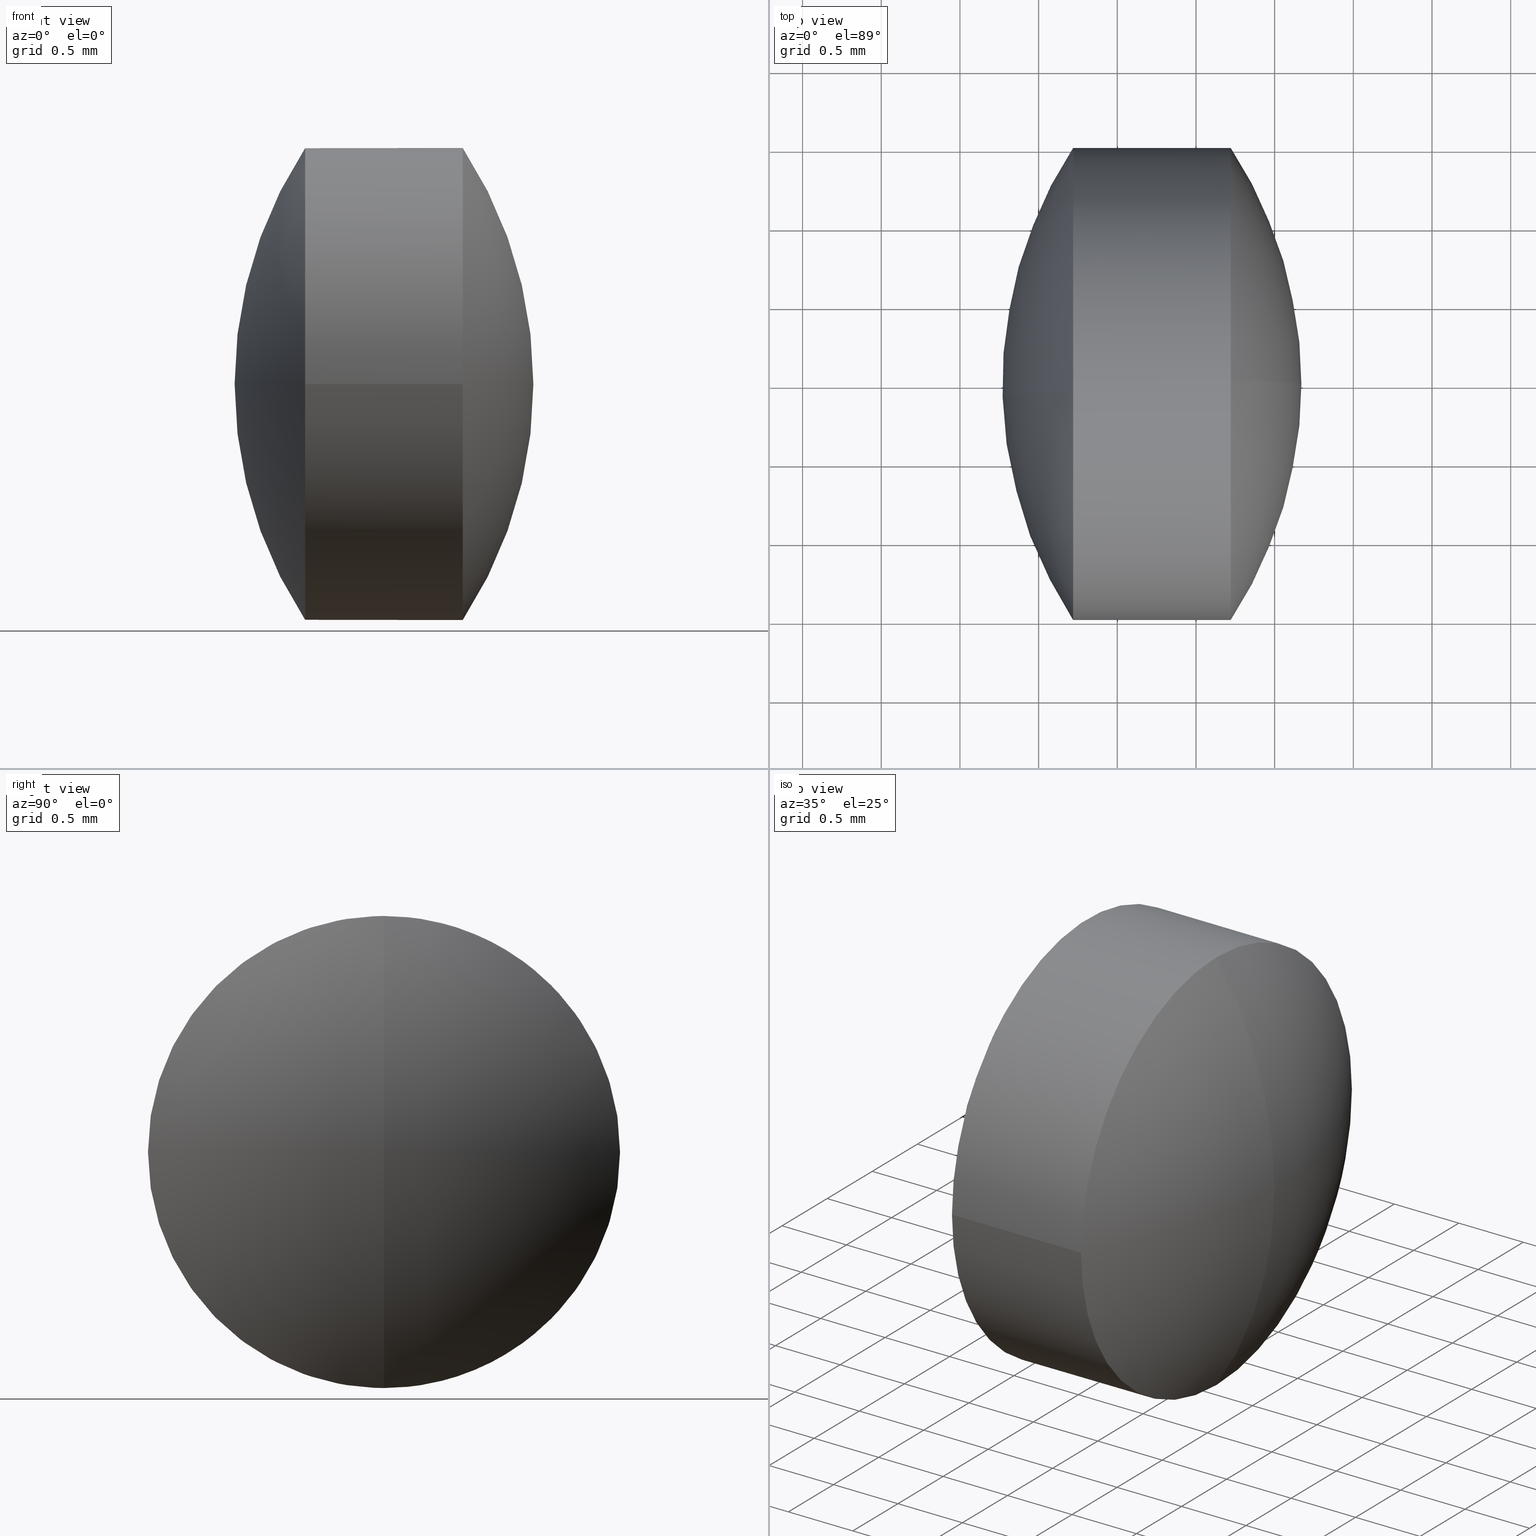
[diagram: canonical four-view strip — front | top / right | iso, engineering-drawing reading convention]
A machine part, canonical four-view strip (front | top / right | iso — engineering-drawing reading convention). The complete STEP part file that produces these views, byte-faithful:
ISO-10303-21;
HEADER;
FILE_DESCRIPTION (( 'STEP AP203' ),
    '1' );
FILE_NAME ('110002.STEP',
    '2022-03-17T09:48:08',
    ( '' ),
    ( '' ),
    'SwSTEP 2.0',
    'SolidWorks 2020',
    '' );
FILE_SCHEMA (( 'CONFIG_CONTROL_DESIGN' ));
ENDSEC;

DATA;
#1 = CARTESIAN_POINT ( 'NONE',  ( -1.279013371367559992, -2.074997055721540335E-16, 0.000000000000000000 ) ) ;
#2 = DIRECTION ( 'NONE',  ( 1.000000000000000000, 4.621236666965490468E-16, 0.000000000000000000 ) ) ;
#3 = DIRECTION ( 'NONE',  ( 0.000000000000000000, 0.000000000000000000, -1.000000000000000000 ) ) ;
#4 = UNCERTAINTY_MEASURE_WITH_UNIT (LENGTH_MEASURE( 1.000000000000000082E-05 ), #51, 'distance_accuracy_value', 'NONE');
#5 = DIRECTION ( 'NONE',  ( -4.336808689942017736E-16, 1.000000000000000000, 0.000000000000000000 ) ) ;
#6 = AXIS2_PLACEMENT_3D ( 'NONE', #23, #235, #101 ) ;
#7 = DIRECTION ( 'NONE',  ( 0.000000000000000000, 0.000000000000000000, -1.000000000000000000 ) ) ;
#8 = DIRECTION ( 'NONE',  ( 0.000000000000000000, 0.000000000000000000, -1.000000000000000000 ) ) ;
#9 = CIRCLE ( 'NONE', #192, 2.729999999999999982 ) ;
#10 = MANIFOLD_SOLID_BREP ( '���2.stp', #155 ) ;
#11 = PERSON_AND_ORGANIZATION_ROLE ( 'creator' ) ;
#12 = AXIS2_PLACEMENT_3D ( 'NONE', #103, #200, #25 ) ;
#13 = APPROVAL_DATE_TIME ( #106, #230 ) ;
#14 = APPLICATION_PROTOCOL_DEFINITION ( 'international standard', 'config_control_design', 1994, #81 ) ;
#15 = ORIENTED_EDGE ( 'NONE', *, *, #117, .T. ) ;
#16 = APPROVAL_DATE_TIME ( #242, #108 ) ;
#17 = EDGE_LOOP ( 'NONE', ( #193, #212, #113 ) ) ;
#18 = APPROVAL_DATE_TIME ( #188, #100 ) ;
#19 = PERSON ( 'δָ��', 'δָ��', 'δָ��', ('δָ��'), ('δָ��'), ('δָ��') ) ;
#20 = LOCAL_TIME ( 17, 48, 8.000000000000000000, #37 ) ;
#21 = AXIS2_PLACEMENT_3D ( 'NONE', #49, #160, #174 ) ;
#22 = CARTESIAN_POINT ( 'NONE',  ( -1.279013371367559770, 0.000000000000000000, -1.500000000000002442 ) ) ;
#23 = CARTESIAN_POINT ( 'NONE',  ( -1.279013371367559992, -2.074997055721540335E-16, 0.000000000000000000 ) ) ;
#24 = LOCAL_TIME ( 17, 48, 8.000000000000000000, #229 ) ;
#25 = DIRECTION ( 'NONE',  ( -0.9995481948924014315, -0.03005671451342888795, 0.000000000000000000 ) ) ;
#26 = CC_DESIGN_DATE_AND_TIME_ASSIGNMENT ( #40, #227, ( #82 ) ) ;
#27 = CARTESIAN_POINT ( 'NONE',  ( -1.279013371367559992, -2.074997055721540335E-16, 0.000000000000000000 ) ) ;
#28 = CARTESIAN_POINT ( 'NONE',  ( -1.780000000000000471, 1.499999999999999556, 0.000000000000000000 ) ) ;
#29 = DIRECTION ( 'NONE',  ( 0.03005671451342888795, -0.9995481948924014315, 3.582458973934590859E-33 ) ) ;
#30 = CC_DESIGN_PERSON_AND_ORGANIZATION_ASSIGNMENT ( #149, #89, ( #82 ) ) ;
#31 = PERSON_AND_ORGANIZATION ( #19, #116 ) ;
#32 = COORDINATED_UNIVERSAL_TIME_OFFSET ( 8, 0, .AHEAD. ) ;
#33 = VECTOR ( 'NONE', #46, 1000.000000000000000 ) ;
#34 = CARTESIAN_POINT ( 'NONE',  ( -1.279013371367559326, -1.500000000000000222, 1.836970198721029934E-16 ) ) ;
#35 = VERTEX_POINT ( 'NONE', #197 ) ;
#36 = ORIENTED_EDGE ( 'NONE', *, *, #152, .F. ) ;
#37 = COORDINATED_UNIVERSAL_TIME_OFFSET ( 8, 0, .AHEAD. ) ;
#38 = CALENDAR_DATE ( 2022, 17, 3 ) ;
#39 = CC_DESIGN_APPROVAL ( #230, ( #94 ) ) ;
#40 = DATE_AND_TIME ( #38, #220 ) ;
#41 = ORIENTED_EDGE ( 'NONE', *, *, #171, .T. ) ;
#42 = VERTEX_POINT ( 'NONE', #22 ) ;
#43 = VERTEX_POINT ( 'NONE', #99 ) ;
#44 = CYLINDRICAL_SURFACE ( 'NONE', #194, 1.500000000000000000 ) ;
#45 = AXIS2_PLACEMENT_3D ( 'NONE', #150, #56, #153 ) ;
#46 = DIRECTION ( 'NONE',  ( 1.000000000000000000, 4.625929269271479997E-16, 0.000000000000000000 ) ) ;
#47 = CIRCLE ( 'NONE', #119, 1.500000000000000000 ) ;
#48 = DIRECTION ( 'NONE',  ( 1.000000000000000000, 0.000000000000000000, 0.000000000000000000 ) ) ;
#49 = CARTESIAN_POINT ( 'NONE',  ( 0.000000000000000000, 0.000000000000000000, 0.000000000000000000 ) ) ;
#50 = FACE_OUTER_BOUND ( 'NONE', #118, .T. ) ;
#51 =( LENGTH_UNIT ( ) NAMED_UNIT ( * ) SI_UNIT ( .MILLI., .METRE. ) );
#52 = CIRCLE ( 'NONE', #141, 1.500000000000000000 ) ;
#53 =( NAMED_UNIT ( * ) PLANE_ANGLE_UNIT ( ) SI_UNIT ( $, .RADIAN. ) );
#54 = APPROVAL_ROLE ( '' ) ;
#55 = ORIENTED_EDGE ( 'NONE', *, *, #123, .F. ) ;
#56 = DIRECTION ( 'NONE',  ( 0.000000000000000000, 0.000000000000000000, 1.000000000000000000 ) ) ;
#57 = ADVANCED_FACE ( 'NONE', ( #173 ), #217, .T. ) ;
#58 = COORDINATED_UNIVERSAL_TIME_OFFSET ( 8, 0, .AHEAD. ) ;
#59 = VERTEX_POINT ( 'NONE', #158 ) ;
#60 = ORIENTED_EDGE ( 'NONE', *, *, #222, .F. ) ;
#61 = ORIENTED_EDGE ( 'NONE', *, *, #129, .F. ) ;
#62 = DIRECTION ( 'NONE',  ( 1.000000000000000000, 0.000000000000000000, 0.000000000000000000 ) ) ;
#63 = ADVANCED_FACE ( 'NONE', ( #50 ), #44, .T. ) ;
#64 = DIRECTION ( 'NONE',  ( 0.000000000000000000, 0.000000000000000000, -1.000000000000000000 ) ) ;
#65 = CC_DESIGN_APPROVAL ( #108, ( #147 ) ) ;
#66 = DIRECTION ( 'NONE',  ( 0.000000000000000000, 1.000000000000000000, 0.000000000000000000 ) ) ;
#67 = DIRECTION ( 'NONE',  ( 1.000000000000000000, 4.621236666965490468E-16, 0.000000000000000000 ) ) ;
#68 = CARTESIAN_POINT ( 'NONE',  ( -2.280986628632439839, -6.705352611512889582E-16, 0.000000000000000000 ) ) ;
#69 =( NAMED_UNIT ( * ) SI_UNIT ( $, .STERADIAN. ) SOLID_ANGLE_UNIT ( ) );
#70 = PERSON_AND_ORGANIZATION ( #19, #116 ) ;
#71 = CC_DESIGN_PERSON_AND_ORGANIZATION_ASSIGNMENT ( #31, #72, ( #130 ) ) ;
#72 = PERSON_AND_ORGANIZATION_ROLE ( 'design_owner' ) ;
#73 = EDGE_CURVE ( 'NONE', #42, #186, #47, .T. ) ;
#74 =( GEOMETRIC_REPRESENTATION_CONTEXT ( 3 ) GLOBAL_UNCERTAINTY_ASSIGNED_CONTEXT ( ( #4 ) ) GLOBAL_UNIT_ASSIGNED_CONTEXT ( ( #51, #53, #69 ) ) REPRESENTATION_CONTEXT ( 'NONE', 'WORKASPACE' ) );
#75 = CIRCLE ( 'NONE', #245, 1.500000000000000000 ) ;
#76 = VERTEX_POINT ( 'NONE', #234 ) ;
#77 = ORIENTED_EDGE ( 'NONE', *, *, #73, .T. ) ;
#78 = ADVANCED_FACE ( 'NONE', ( #162 ), #232, .T. ) ;
#79 = ORIENTED_EDGE ( 'NONE', *, *, #195, .F. ) ;
#80 = CARTESIAN_POINT ( 'NONE',  ( -3.559999999999999609, 0.000000000000000000, 0.000000000000000000 ) ) ;
#81 = APPLICATION_CONTEXT ( 'configuration controlled 3d designs of mechanical parts and assemblies' ) ;
#82 = SECURITY_CLASSIFICATION ( '', '', #169 ) ;
#83 = FACE_OUTER_BOUND ( 'NONE', #196, .T. ) ;
#84 = DIRECTION ( 'NONE',  ( 0.000000000000000000, 1.000000000000000000, 0.000000000000000000 ) ) ;
#85 = CIRCLE ( 'NONE', #107, 1.500000000000000000 ) ;
#86 = CARTESIAN_POINT ( 'NONE',  ( -1.779999999999999805, -4.390174833617219643E-16, 0.000000000000000000 ) ) ;
#87 = CIRCLE ( 'NONE', #6, 1.500000000000000000 ) ;
#88 = DIRECTION ( 'NONE',  ( 0.000000000000000000, -1.000000000000000000, 0.000000000000000000 ) ) ;
#89 = PERSON_AND_ORGANIZATION_ROLE ( 'classification_officer' ) ;
#90 = PERSON_AND_ORGANIZATION_ROLE ( 'design_supplier' ) ;
#91 = APPROVAL_STATUS ( 'not_yet_approved' ) ;
#92 = ORIENTED_EDGE ( 'NONE', *, *, #184, .F. ) ;
#93 = CALENDAR_DATE ( 2022, 17, 3 ) ;
#94 = PRODUCT_DEFINITION_FORMATION_WITH_SPECIFIED_SOURCE ( '�κ�', '', #130, .NOT_KNOWN. ) ;
#95 = VECTOR ( 'NONE', #218, 1000.000000000000000 ) ;
#96 = CC_DESIGN_DATE_AND_TIME_ASSIGNMENT ( #207, #219, ( #147 ) ) ;
#97 = ORIENTED_EDGE ( 'NONE', *, *, #206, .F. ) ;
#98 = EDGE_LOOP ( 'NONE', ( #55, #223, #79 ) ) ;
#99 = CARTESIAN_POINT ( 'NONE',  ( -2.280986628632440727, 1.499999999999999334, 0.000000000000000000 ) ) ;
#100 = APPROVAL ( #115, 'δָ��' ) ;
#101 = DIRECTION ( 'NONE',  ( 0.000000000000000000, 0.000000000000000000, -1.000000000000000000 ) ) ;
#102 = CARTESIAN_POINT ( 'NONE',  ( -2.280986628632439839, -6.705352611512889582E-16, 0.000000000000000000 ) ) ;
#103 = CARTESIAN_POINT ( 'NONE',  ( 0.000000000000000000, 0.000000000000000000, 0.000000000000000000 ) ) ;
#104 = SPHERICAL_SURFACE ( 'NONE', #131, 2.729999999999999982 ) ;
#105 = DIRECTION ( 'NONE',  ( 0.000000000000000000, 0.000000000000000000, -1.000000000000000000 ) ) ;
#106 = DATE_AND_TIME ( #93, #20 ) ;
#107 = AXIS2_PLACEMENT_3D ( 'NONE', #1, #112, #8 ) ;
#108 = APPROVAL ( #91, 'δָ��' ) ;
#109 = CALENDAR_DATE ( 2022, 17, 3 ) ;
#110 = CIRCLE ( 'NONE', #144, 1.500000000000000000 ) ;
#111 = PERSON_AND_ORGANIZATION ( #19, #116 ) ;
#112 = DIRECTION ( 'NONE',  ( 1.000000000000000000, 4.621236666965490468E-16, 0.000000000000000000 ) ) ;
#113 = ORIENTED_EDGE ( 'NONE', *, *, #206, .T. ) ;
#114 = CALENDAR_DATE ( 2022, 17, 3 ) ;
#115 = APPROVAL_STATUS ( 'not_yet_approved' ) ;
#116 = ORGANIZATION ( 'δָ��', 'δָ��', '' ) ;
#117 = EDGE_CURVE ( 'NONE', #186, #35, #75, .T. ) ;
#118 = EDGE_LOOP ( 'NONE', ( #122, #151, #139, #41, #156, #61 ) ) ;
#119 = AXIS2_PLACEMENT_3D ( 'NONE', #27, #2, #146 ) ;
#120 = ORIENTED_EDGE ( 'NONE', *, *, #123, .T. ) ;
#121 = PRODUCT_DEFINITION_SHAPE ( 'NONE', 'NONE',  #147 ) ;
#122 = ORIENTED_EDGE ( 'NONE', *, *, #161, .F. ) ;
#123 = EDGE_CURVE ( 'NONE', #76, #59, #215, .T. ) ;
#124 = AXIS2_PLACEMENT_3D ( 'NONE', #102, #140, #64 ) ;
#125 = DIRECTION ( 'NONE',  ( 1.000000000000000000, 4.625929269271479997E-16, 0.000000000000000000 ) ) ;
#126 = DIRECTION ( 'NONE',  ( -4.336808689942017736E-16, 1.000000000000000000, 0.000000000000000000 ) ) ;
#127 = CARTESIAN_POINT ( 'NONE',  ( -1.779999999999999138, -1.500000000000000444, 1.836970198721029934E-16 ) ) ;
#128 = CARTESIAN_POINT ( 'NONE',  ( -1.279013371367559992, -2.074997055721540335E-16, 0.000000000000000000 ) ) ;
#129 = EDGE_CURVE ( 'NONE', #208, #42, #87, .T. ) ;
#130 = PRODUCT ( '110002', '110002', '', ( #204 ) ) ;
#131 = AXIS2_PLACEMENT_3D ( 'NONE', #178, #29, #164 ) ;
#132 = CARTESIAN_POINT ( 'NONE',  ( -2.280986628632438951, -1.500000000000000888, 1.836970198721030427E-16 ) ) ;
#133 = AXIS2_PLACEMENT_3D ( 'NONE', #201, #177, #126 ) ;
#134 = DIRECTION ( 'NONE',  ( 0.000000000000000000, 0.000000000000000000, -1.000000000000000000 ) ) ;
#135 = APPROVAL_STATUS ( 'not_yet_approved' ) ;
#136 = APPROVAL_ROLE ( '' ) ;
#137 = ADVANCED_FACE ( 'NONE', ( #142 ), #143, .T. ) ;
#138 = PRODUCT_RELATED_PRODUCT_CATEGORY ( 'detail', '', ( #130 ) ) ;
#139 = ORIENTED_EDGE ( 'NONE', *, *, #184, .T. ) ;
#140 = DIRECTION ( 'NONE',  ( 1.000000000000000000, 4.621236666965490468E-16, 0.000000000000000000 ) ) ;
#141 = AXIS2_PLACEMENT_3D ( 'NONE', #167, #224, #185 ) ;
#142 = FACE_OUTER_BOUND ( 'NONE', #17, .T. ) ;
#143 = SPHERICAL_SURFACE ( 'NONE', #163, 2.729999999999999982 ) ;
#144 = AXIS2_PLACEMENT_3D ( 'NONE', #68, #67, #3 ) ;
#145 = LINE ( 'NONE', #127, #33 ) ;
#146 = DIRECTION ( 'NONE',  ( 0.000000000000000000, 0.000000000000000000, -1.000000000000000000 ) ) ;
#147 = PRODUCT_DEFINITION ( 'δ֪', '', #94, #198 ) ;
#148 = COORDINATED_UNIVERSAL_TIME_OFFSET ( 8, 0, .AHEAD. ) ;
#149 = PERSON_AND_ORGANIZATION ( #19, #116 ) ;
#150 = CARTESIAN_POINT ( 'NONE',  ( 0.000000000000000000, 0.000000000000000000, 0.000000000000000000 ) ) ;
#151 = ORIENTED_EDGE ( 'NONE', *, *, #244, .T. ) ;
#152 = EDGE_CURVE ( 'NONE', #43, #59, #110, .T. ) ;
#153 = DIRECTION ( 'NONE',  ( 1.000000000000000000, 0.000000000000000000, 0.000000000000000000 ) ) ;
#154 = CC_DESIGN_PERSON_AND_ORGANIZATION_ASSIGNMENT ( #181, #11, ( #94 ) ) ;
#155 = CLOSED_SHELL ( 'NONE', ( #137, #170, #78, #63, #190, #57 ) ) ;
#156 = ORIENTED_EDGE ( 'NONE', *, *, #73, .F. ) ;
#157 = ORIENTED_EDGE ( 'NONE', *, *, #195, .T. ) ;
#158 = CARTESIAN_POINT ( 'NONE',  ( -2.280986628632439839, -0.06858995319693821091, 1.498430985504654922 ) ) ;
#159 = AXIS2_PLACEMENT_3D ( 'NONE', #237, #213, #105 ) ;
#160 = DIRECTION ( 'NONE',  ( -0.03005671451342888795, 0.9995481948924015425, -3.081487911019575996E-33 ) ) ;
#161 = EDGE_CURVE ( 'NONE', #247, #208, #145, .T. ) ;
#162 = FACE_OUTER_BOUND ( 'NONE', #211, .T. ) ;
#163 = AXIS2_PLACEMENT_3D ( 'NONE', #231, #66, #62 ) ;
#164 = DIRECTION ( 'NONE',  ( -0.9995481948924014315, -0.03005671451342888795, 0.000000000000000000 ) ) ;
#165 = CC_DESIGN_PERSON_AND_ORGANIZATION_ASSIGNMENT ( #70, #168, ( #147 ) ) ;
#166 = APPROVAL_PERSON_ORGANIZATION ( #172, #100, #136 ) ;
#167 = CARTESIAN_POINT ( 'NONE',  ( -2.280986628632439839, -6.705352611512889582E-16, 0.000000000000000000 ) ) ;
#168 = PERSON_AND_ORGANIZATION_ROLE ( 'creator' ) ;
#169 = SECURITY_CLASSIFICATION_LEVEL ( 'unclassified' ) ;
#170 = ADVANCED_FACE ( 'NONE', ( #83 ), #216, .T. ) ;
#171 = EDGE_CURVE ( 'NONE', #43, #186, #202, .T. ) ;
#172 = PERSON_AND_ORGANIZATION ( #19, #116 ) ;
#173 = FACE_OUTER_BOUND ( 'NONE', #210, .T. ) ;
#174 = DIRECTION ( 'NONE',  ( -0.9995481948924014315, -0.03005671451342888101, 0.000000000000000000 ) ) ;
#175 = CC_DESIGN_APPROVAL ( #100, ( #82 ) ) ;
#176 = FACE_OUTER_BOUND ( 'NONE', #98, .T. ) ;
#177 = DIRECTION ( 'NONE',  ( 1.000000000000000000, 4.625929269271479997E-16, 0.000000000000000000 ) ) ;
#178 = CARTESIAN_POINT ( 'NONE',  ( 0.000000000000000000, 0.000000000000000000, 0.000000000000000000 ) ) ;
#179 = PERSON_AND_ORGANIZATION ( #19, #116 ) ;
#180 = LOCAL_TIME ( 17, 48, 8.000000000000000000, #32 ) ;
#181 = PERSON_AND_ORGANIZATION ( #19, #116 ) ;
#182 = APPROVAL_ROLE ( '' ) ;
#183 = AXIS2_PLACEMENT_3D ( 'NONE', #80, #84, #48 ) ;
#184 = EDGE_CURVE ( 'NONE', #76, #43, #225, .T. ) ;
#185 = DIRECTION ( 'NONE',  ( 0.000000000000000000, 0.000000000000000000, -1.000000000000000000 ) ) ;
#186 = VERTEX_POINT ( 'NONE', #203 ) ;
#187 = ORIENTED_EDGE ( 'NONE', *, *, #171, .F. ) ;
#188 = DATE_AND_TIME ( #114, #24 ) ;
#189 = APPLICATION_CONTEXT ( 'configuration controlled 3d designs of mechanical parts and assemblies' ) ;
#190 = ADVANCED_FACE ( 'NONE', ( #176 ), #104, .T. ) ;
#191 = SHAPE_DEFINITION_REPRESENTATION ( #121, #221 ) ;
#192 = AXIS2_PLACEMENT_3D ( 'NONE', #240, #88, #134 ) ;
#193 = ORIENTED_EDGE ( 'NONE', *, *, #129, .T. ) ;
#194 = AXIS2_PLACEMENT_3D ( 'NONE', #86, #125, #5 ) ;
#195 = EDGE_CURVE ( 'NONE', #59, #247, #243, .T. ) ;
#196 = EDGE_LOOP ( 'NONE', ( #92, #120, #36 ) ) ;
#197 = CARTESIAN_POINT ( 'NONE',  ( -1.279013371367559770, 0.000000000000000000, 1.500000000000002442 ) ) ;
#198 = DESIGN_CONTEXT ( 'detailed design', #81, 'design' ) ;
#199 = DIRECTION ( 'NONE',  ( 1.000000000000000000, 4.621236666965490468E-16, 0.000000000000000000 ) ) ;
#200 = DIRECTION ( 'NONE',  ( 0.03005671451342888795, -0.9995481948924014315, 3.582458973934590859E-33 ) ) ;
#201 = CARTESIAN_POINT ( 'NONE',  ( -1.779999999999999805, -4.390174833617219643E-16, 0.000000000000000000 ) ) ;
#202 = LINE ( 'NONE', #28, #95 ) ;
#203 = CARTESIAN_POINT ( 'NONE',  ( -1.279013371367560659, 1.500000000000000000, 0.000000000000000000 ) ) ;
#204 = MECHANICAL_CONTEXT ( 'NONE', #189, 'mechanical' ) ;
#205 = LOCAL_TIME ( 17, 48, 8.000000000000000000, #148 ) ;
#206 = EDGE_CURVE ( 'NONE', #35, #208, #85, .T. ) ;
#207 = DATE_AND_TIME ( #209, #205 ) ;
#208 = VERTEX_POINT ( 'NONE', #34 ) ;
#209 = CALENDAR_DATE ( 2022, 17, 3 ) ;
#210 = EDGE_LOOP ( 'NONE', ( #60, #77, #15 ) ) ;
#211 = EDGE_LOOP ( 'NONE', ( #228, #157, #246, #97, #226, #187 ) ) ;
#212 = ORIENTED_EDGE ( 'NONE', *, *, #222, .T. ) ;
#213 = DIRECTION ( 'NONE',  ( 1.000000000000000000, 4.621236666965490468E-16, 0.000000000000000000 ) ) ;
#214 = APPROVAL_PERSON_ORGANIZATION ( #111, #108, #182 ) ;
#215 = CIRCLE ( 'NONE', #21, 2.730000000000000426 ) ;
#216 = SPHERICAL_SURFACE ( 'NONE', #12, 2.729999999999999982 ) ;
#217 = SPHERICAL_SURFACE ( 'NONE', #183, 2.729999999999999982 ) ;
#218 = DIRECTION ( 'NONE',  ( 1.000000000000000000, 4.625929269271479997E-16, 0.000000000000000000 ) ) ;
#219 = DATE_TIME_ROLE ( 'creation_date' ) ;
#220 = LOCAL_TIME ( 17, 48, 8.000000000000000000, #58 ) ;
#221 = ADVANCED_BREP_SHAPE_REPRESENTATION ( '110002', ( #10, #45 ), #74 ) ;
#222 = EDGE_CURVE ( 'NONE', #42, #35, #9, .T. ) ;
#223 = ORIENTED_EDGE ( 'NONE', *, *, #244, .F. ) ;
#224 = DIRECTION ( 'NONE',  ( 1.000000000000000000, 4.621236666965490468E-16, 0.000000000000000000 ) ) ;
#225 = CIRCLE ( 'NONE', #124, 1.500000000000000000 ) ;
#226 = ORIENTED_EDGE ( 'NONE', *, *, #117, .F. ) ;
#227 = DATE_TIME_ROLE ( 'classification_date' ) ;
#228 = ORIENTED_EDGE ( 'NONE', *, *, #152, .T. ) ;
#229 = COORDINATED_UNIVERSAL_TIME_OFFSET ( 8, 0, .AHEAD. ) ;
#230 = APPROVAL ( #135, 'δָ��' ) ;
#231 = CARTESIAN_POINT ( 'NONE',  ( -3.559999999999999609, 0.000000000000000000, 0.000000000000000000 ) ) ;
#232 = CYLINDRICAL_SURFACE ( 'NONE', #133, 1.500000000000000000 ) ;
#233 = APPROVAL_PERSON_ORGANIZATION ( #241, #230, #54 ) ;
#234 = CARTESIAN_POINT ( 'NONE',  ( -2.280986628632439839, -0.06858995319693821091, -1.498430985504654922 ) ) ;
#235 = DIRECTION ( 'NONE',  ( 1.000000000000000000, 4.621236666965490468E-16, 0.000000000000000000 ) ) ;
#236 = CC_DESIGN_PERSON_AND_ORGANIZATION_ASSIGNMENT ( #179, #90, ( #94 ) ) ;
#237 = CARTESIAN_POINT ( 'NONE',  ( -2.280986628632439839, -6.705352611512889582E-16, 0.000000000000000000 ) ) ;
#238 = APPLICATION_PROTOCOL_DEFINITION ( 'international standard', 'config_control_design', 1994, #189 ) ;
#239 = CC_DESIGN_SECURITY_CLASSIFICATION ( #82, ( #94 ) ) ;
#240 = CARTESIAN_POINT ( 'NONE',  ( -3.559999999999999609, 0.000000000000000000, 0.000000000000000000 ) ) ;
#241 = PERSON_AND_ORGANIZATION ( #19, #116 ) ;
#242 = DATE_AND_TIME ( #109, #180 ) ;
#243 = CIRCLE ( 'NONE', #159, 1.500000000000000000 ) ;
#244 = EDGE_CURVE ( 'NONE', #247, #76, #52, .T. ) ;
#245 = AXIS2_PLACEMENT_3D ( 'NONE', #128, #199, #7 ) ;
#246 = ORIENTED_EDGE ( 'NONE', *, *, #161, .T. ) ;
#247 = VERTEX_POINT ( 'NONE', #132 ) ;
ENDSEC;
END-ISO-10303-21;
